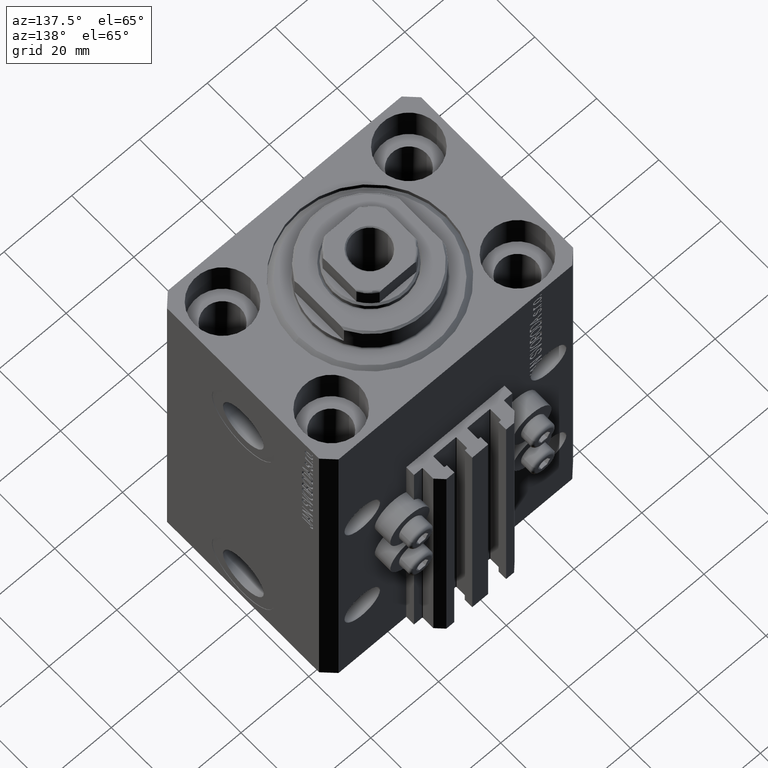
[diagram: clean part render]
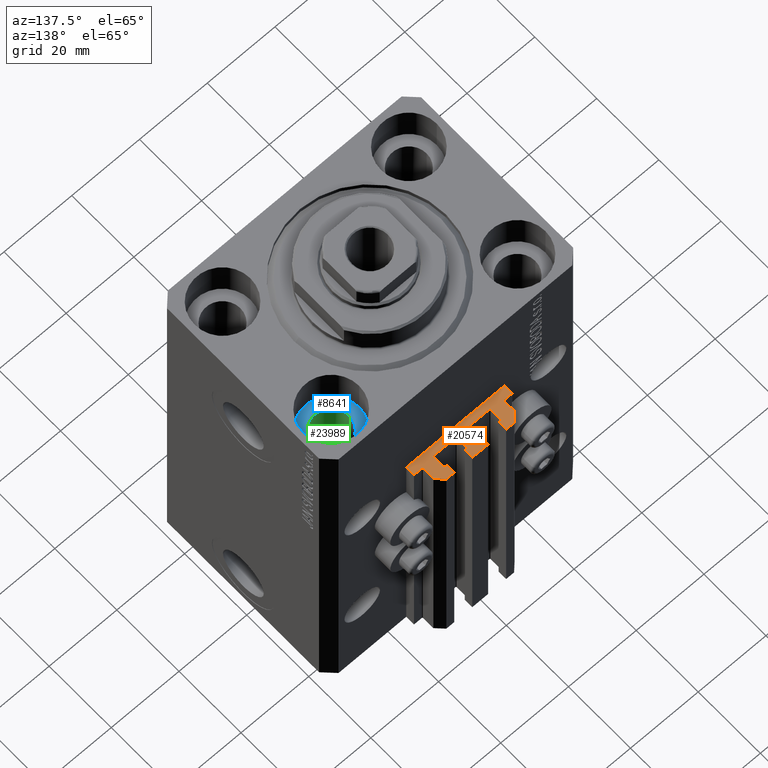
[diagram: same view with three faces highlighted in distinct colors, each labeled with its STEP entity id]
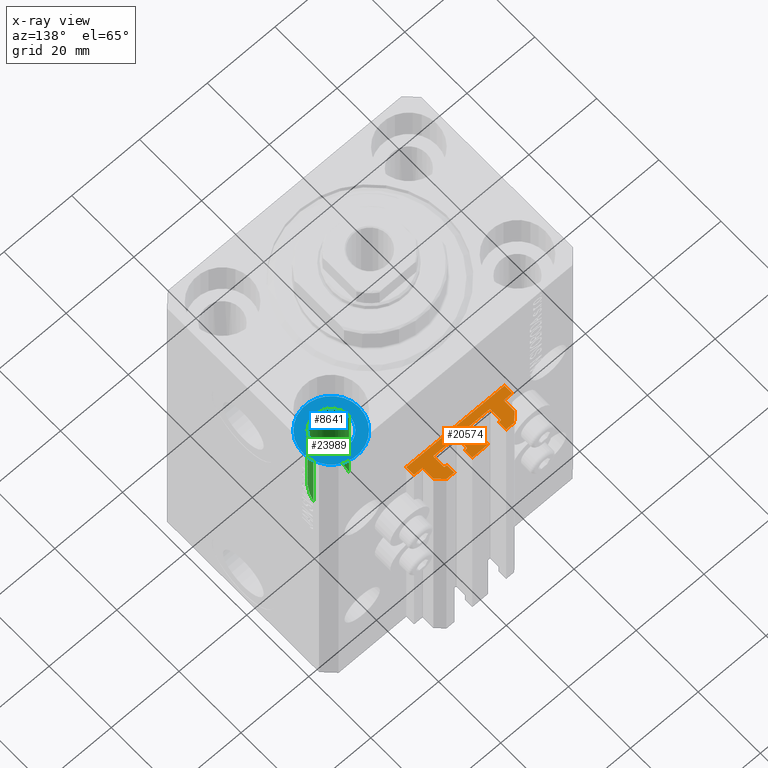
[diagram: x-ray of the same camera — body ghosted, the three highlighted faces saturated]
A machine part, auxiliary view with three faces highlighted in distinct colors.
The next image is the same camera in x-ray (body ghosted, the three faces saturated) — at least one of them is partly hidden behind the body in this view.
Their STEP definitions:

[orange] entity #20574 — the highlighted planar face has unit normal (0, 0, 1).
#384 = EDGE_CURVE ( 'NONE', #39765, #4893, #3202, .T. ) ;
#623 = CIRCLE ( 'NONE', #17601, 0.2000000000000016209 ) ;
#1006 = CARTESIAN_POINT ( 'NONE',  ( 2.349999999999999645, 33.10000000000000853, -33.00000000000000000 ) ) ;
#1104 = CARTESIAN_POINT ( 'NONE',  ( 14.49999999999999645, 30.00000000000002487, -33.00000000000000000 ) ) ;
#1213 = CIRCLE ( 'NONE', #1322, 0.2000000000000031197 ) ;
#1322 = AXIS2_PLACEMENT_3D ( 'NONE', #19679, #34488, #40277 ) ;
#1653 = VERTEX_POINT ( 'NONE', #29956 ) ;
#1675 = VECTOR ( 'NONE', #6223, 1000.000000000000000 ) ;
#1679 = ORIENTED_EDGE ( 'NONE', *, *, #39161, .T. ) ;
#2243 = CARTESIAN_POINT ( 'NONE',  ( -8.399999999999996803, 29.69999999999999929, -33.00000000000000000 ) ) ;
#2390 = DIRECTION ( 'NONE',  ( 1.000000000000000000, 0.000000000000000000, 0.000000000000000000 ) ) ;
#2444 = EDGE_CURVE ( 'NONE', #35758, #33109, #39775, .T. ) ;
#2461 = DIRECTION ( 'NONE',  ( -1.000000000000000000, 1.508455196501571429E-15, 0.000000000000000000 ) ) ;
#2564 = DIRECTION ( 'NONE',  ( 0.000000000000000000, 1.000000000000000000, 0.000000000000000000 ) ) ;
#2591 = VERTEX_POINT ( 'NONE', #1006 ) ;
#3034 = CARTESIAN_POINT ( 'NONE',  ( 1.600000000000000533, 32.90000000000001279, -33.00000000000000000 ) ) ;
#3169 = VECTOR ( 'NONE', #31192, 1000.000000000000000 ) ;
#3202 = LINE ( 'NONE', #6809, #26036 ) ;
#3242 = VERTEX_POINT ( 'NONE', #24083 ) ;
#3573 = CARTESIAN_POINT ( 'NONE',  ( 7.649999999999998579, 35.50000000000001421, -33.00000000000000000 ) ) ;
#3766 = VECTOR ( 'NONE', #9048, 1000.000000000000000 ) ;
#3899 = DIRECTION ( 'NONE',  ( 1.000000000000000000, 0.000000000000000000, 0.000000000000000000 ) ) ;
#3930 = LINE ( 'NONE', #18898, #43066 ) ;
#4165 = DIRECTION ( 'NONE',  ( -1.000000000000000000, 0.000000000000000000, 0.000000000000000000 ) ) ;
#4171 = VERTEX_POINT ( 'NONE', #12243 ) ;
#4242 = VERTEX_POINT ( 'NONE', #5461 ) ;
#4386 = DIRECTION ( 'NONE',  ( 1.807003620809174632E-16, -1.000000000000000000, 0.000000000000000000 ) ) ;
#4860 = LINE ( 'NONE', #30543, #35535 ) ;
#4893 = VERTEX_POINT ( 'NONE', #33258 ) ;
#4903 = CARTESIAN_POINT ( 'NONE',  ( -2.350000000000003197, 33.10000000000000853, -33.00000000000000000 ) ) ;
#5025 = DIRECTION ( 'NONE',  ( 0.000000000000000000, 0.000000000000000000, 1.000000000000000000 ) ) ;
#5092 = CARTESIAN_POINT ( 'NONE',  ( 12.20000000000000107, 30.20000000000002061, -33.00000000000000000 ) ) ;
#5115 = CARTESIAN_POINT ( 'NONE',  ( 12.20000000000000107, 30.20000000000002061, -33.00000000000000000 ) ) ;
#5436 = EDGE_CURVE ( 'NONE', #13499, #35021, #10138, .T. ) ;
#5461 = CARTESIAN_POINT ( 'NONE',  ( -1.800000000000000933, 29.50000000000000355, -33.00000000000000000 ) ) ;
#5469 = EDGE_CURVE ( 'NONE', #4893, #12963, #21752, .T. ) ;
#5539 = CARTESIAN_POINT ( 'NONE',  ( -1.600000000000000533, 32.90000000000001279, -33.00000000000000000 ) ) ;
#5690 = LINE ( 'NONE', #39611, #6718 ) ;
#5773 = VERTEX_POINT ( 'NONE', #20963 ) ;
#5776 = CIRCLE ( 'NONE', #31347, 0.2000000000000033418 ) ;
#5810 = LINE ( 'NONE', #20562, #28611 ) ;
#5890 = CARTESIAN_POINT ( 'NONE',  ( -10.00000000000000000, 35.50000000000000000, -33.00000000000000000 ) ) ;
#6081 = LINE ( 'NONE', #1104, #3766 ) ;
#6125 = EDGE_CURVE ( 'NONE', #12785, #30532, #4860, .T. ) ;
#6223 = DIRECTION ( 'NONE',  ( 1.000000000000000000, -1.261617073437673828E-14, 0.000000000000000000 ) ) ;
#6324 = CARTESIAN_POINT ( 'NONE',  ( 14.49999999999999645, 27.50000000000000355, -33.00000000000000000 ) ) ;
#6382 = VECTOR ( 'NONE', #33386, 1000.000000000000000 ) ;
#6412 = DIRECTION ( 'NONE',  ( -1.084202172485505223E-15, 1.000000000000000000, 0.000000000000000000 ) ) ;
#6454 = DIRECTION ( 'NONE',  ( 0.000000000000000000, -1.000000000000000000, 0.000000000000000000 ) ) ;
#6547 = VERTEX_POINT ( 'NONE', #33825 ) ;
#6718 = VECTOR ( 'NONE', #6412, 1000.000000000000000 ) ;
#6809 = CARTESIAN_POINT ( 'NONE',  ( -14.50000000000000000, 29.99999999999999289, -33.00000000000000000 ) ) ;
#6968 = ORIENTED_EDGE ( 'NONE', *, *, #19816, .F. ) ;
#7039 = CARTESIAN_POINT ( 'NONE',  ( 8.199999999999999289, 29.70000000000000284, -33.00000000000000000 ) ) ;
#7048 = ORIENTED_EDGE ( 'NONE', *, *, #16628, .T. ) ;
#7365 = VERTEX_POINT ( 'NONE', #9856 ) ;
#7395 = VECTOR ( 'NONE', #2461, 1000.000000000000000 ) ;
#7646 = AXIS2_PLACEMENT_3D ( 'NONE', #35002, #16559, #14377 ) ;
#7659 = CARTESIAN_POINT ( 'NONE',  ( 1.599999999999999645, 29.69999999999999929, -33.00000000000000000 ) ) ;
#7725 = ORIENTED_EDGE ( 'NONE', *, *, #8616, .F. ) ;
#8275 = EDGE_CURVE ( 'NONE', #40523, #32992, #24364, .T. ) ;
#8332 = VERTEX_POINT ( 'NONE', #10806 ) ;
#8338 = CARTESIAN_POINT ( 'NONE',  ( 1.800000000000000933, 29.69999999999999929, -33.00000000000000000 ) ) ;
#8616 = EDGE_CURVE ( 'NONE', #26623, #7365, #19250, .T. ) ;
#9048 = DIRECTION ( 'NONE',  ( -1.000000000000000000, 0.000000000000000000, 0.000000000000000000 ) ) ;
#9387 = CARTESIAN_POINT ( 'NONE',  ( -8.199999999999997513, 32.89999999999999147, -33.00000000000000000 ) ) ;
#9595 = CARTESIAN_POINT ( 'NONE',  ( 7.649999999999998579, 35.50000000000001421, -33.00000000000000000 ) ) ;
#9856 = CARTESIAN_POINT ( 'NONE',  ( -8.199999999999997513, 29.50000000000000355, -33.00000000000000000 ) ) ;
#9974 = CARTESIAN_POINT ( 'NONE',  ( -7.650000000000000355, 33.09999999999999432, -33.00000000000000000 ) ) ;
#10138 = LINE ( 'NONE', #47216, #40905 ) ;
#10673 = DIRECTION ( 'NONE',  ( 0.000000000000000000, 0.000000000000000000, 1.000000000000000000 ) ) ;
#10806 = CARTESIAN_POINT ( 'NONE',  ( -8.199999999999997513, 33.09999999999998721, -33.00000000000000000 ) ) ;
#10914 = DIRECTION ( 'NONE',  ( 0.000000000000000000, 1.000000000000000000, 0.000000000000000000 ) ) ;
#11194 = EDGE_CURVE ( 'NONE', #31587, #2591, #5810, .T. ) ;
#11304 = CARTESIAN_POINT ( 'NONE',  ( 12.00000000000000000, 33.50000000000001421, -33.00000000000000000 ) ) ;
#11356 = ORIENTED_EDGE ( 'NONE', *, *, #18056, .T. ) ;
#11413 = VECTOR ( 'NONE', #22269, 1000.000000000000000 ) ;
#11668 = ORIENTED_EDGE ( 'NONE', *, *, #40976, .T. ) ;
#12046 = CARTESIAN_POINT ( 'NONE',  ( 7.649999999999998579, 33.10000000000001563, -33.00000000000000000 ) ) ;
#12243 = CARTESIAN_POINT ( 'NONE',  ( 8.399999999999998579, 32.90000000000001990, -33.00000000000000000 ) ) ;
#12255 = VERTEX_POINT ( 'NONE', #26857 ) ;
#12785 = VERTEX_POINT ( 'NONE', #43731 ) ;
#12794 = ORIENTED_EDGE ( 'NONE', *, *, #2444, .T. ) ;
#12963 = VERTEX_POINT ( 'NONE', #31522 ) ;
#13499 = VERTEX_POINT ( 'NONE', #43220 ) ;
#13725 = VECTOR ( 'NONE', #46103, 1000.000000000000227 ) ;
#13821 = ORIENTED_EDGE ( 'NONE', *, *, #34254, .F. ) ;
#14087 = CARTESIAN_POINT ( 'NONE',  ( 9.999999999999998224, 35.50000000000001421, -33.00000000000000000 ) ) ;
#14139 = CARTESIAN_POINT ( 'NONE',  ( -12.20000000000000107, 30.19999999999999218, -33.00000000000000000 ) ) ;
#14323 = EDGE_LOOP ( 'NONE', ( #37530, #20453, #26717, #11668, #40945, #18524, #11356, #12794, #22204, #41343, #39416, #15252, #31410, #30537, #20347, #23515, #37192, #23215, #16352, #6968, #40659, #43551, #13821, #1679, #41798, #7048, #7725, #44740, #32530, #38284, #16983, #47882, #39864, #30749, #38088, #47551 ) ) ;
#14377 = DIRECTION ( 'NONE',  ( 1.000000000000000000, 0.000000000000000000, 0.000000000000000000 ) ) ;
#14383 = VERTEX_POINT ( 'NONE', #31528 ) ;
#15120 = EDGE_CURVE ( 'NONE', #22452, #5773, #25962, .T. ) ;
#15252 = ORIENTED_EDGE ( 'NONE', *, *, #44467, .T. ) ;
#15301 = DIRECTION ( 'NONE',  ( -5.421010862427496532E-16, -1.000000000000000000, 0.000000000000000000 ) ) ;
#15452 = EDGE_CURVE ( 'NONE', #40523, #12255, #33516, .T. ) ;
#15498 = CARTESIAN_POINT ( 'NONE',  ( -8.199999999999997513, 33.09999999999998721, -33.00000000000000000 ) ) ;
#16018 = FACE_OUTER_BOUND ( 'NONE', #14323, .T. ) ;
#16280 = DIRECTION ( 'NONE',  ( 0.000000000000000000, 1.000000000000000000, 0.000000000000000000 ) ) ;
#16352 = ORIENTED_EDGE ( 'NONE', *, *, #17921, .T. ) ;
#16559 = DIRECTION ( 'NONE',  ( 0.000000000000000000, 0.000000000000000000, 1.000000000000000000 ) ) ;
#16628 = EDGE_CURVE ( 'NONE', #4242, #7365, #23895, .T. ) ;
#16646 = DIRECTION ( 'NONE',  ( 0.000000000000000000, 0.000000000000000000, 1.000000000000000000 ) ) ;
#16662 = CIRCLE ( 'NONE', #17430, 0.2000000000000005107 ) ;
#16841 = EDGE_CURVE ( 'NONE', #28857, #6547, #41500, .T. ) ;
#16944 = DIRECTION ( 'NONE',  ( 1.000000000000000000, -1.261617073437681085E-14, 0.000000000000000000 ) ) ;
#16962 = DIRECTION ( 'NONE',  ( 0.000000000000000000, 0.000000000000000000, 1.000000000000000000 ) ) ;
#16983 = ORIENTED_EDGE ( 'NONE', *, *, #16841, .T. ) ;
#17128 = CARTESIAN_POINT ( 'NONE',  ( 8.200000000000001066, 32.90000000000001990, -33.00000000000000000 ) ) ;
#17430 = AXIS2_PLACEMENT_3D ( 'NONE', #14139, #35722, #36205 ) ;
#17505 = EDGE_CURVE ( 'NONE', #28517, #14383, #39423, .T. ) ;
#17601 = AXIS2_PLACEMENT_3D ( 'NONE', #8338, #41542, #23102 ) ;
#17921 = EDGE_CURVE ( 'NONE', #2591, #1653, #31146, .T. ) ;
#18056 = EDGE_CURVE ( 'NONE', #35021, #35758, #35978, .T. ) ;
#18440 = CARTESIAN_POINT ( 'NONE',  ( -2.350000000000003642, 35.50000000000001421, -33.00000000000000000 ) ) ;
#18463 = EDGE_CURVE ( 'NONE', #8332, #21045, #29535, .T. ) ;
#18524 = ORIENTED_EDGE ( 'NONE', *, *, #5436, .T. ) ;
#18557 = CARTESIAN_POINT ( 'NONE',  ( 1.800000000000000933, 29.50000000000000000, -33.00000000000000000 ) ) ;
#18898 = CARTESIAN_POINT ( 'NONE',  ( -7.650000000000000355, 35.50000000000000000, -33.00000000000000000 ) ) ;
#19250 = CIRCLE ( 'NONE', #7646, 0.1999999999999987899 ) ;
#19679 = CARTESIAN_POINT ( 'NONE',  ( -1.800000000000000933, 32.90000000000001279, -33.00000000000000000 ) ) ;
#19816 = EDGE_CURVE ( 'NONE', #12785, #1653, #32538, .T. ) ;
#19987 = VECTOR ( 'NONE', #32921, 1000.000000000000000 ) ;
#20097 = VECTOR ( 'NONE', #6454, 1000.000000000000000 ) ;
#20141 = CARTESIAN_POINT ( 'NONE',  ( -12.20000000000000107, 29.99999999999998934, -33.00000000000000000 ) ) ;
#20347 = ORIENTED_EDGE ( 'NONE', *, *, #39532, .F. ) ;
#20453 = ORIENTED_EDGE ( 'NONE', *, *, #5469, .T. ) ;
#20562 = CARTESIAN_POINT ( 'NONE',  ( 1.800000000000000933, 33.10000000000001563, -33.00000000000000000 ) ) ;
#20574 = ADVANCED_FACE ( 'NONE', ( #16018 ), #45581, .T. ) ;
#20963 = CARTESIAN_POINT ( 'NONE',  ( -12.00000000000000000, 30.19999999999999218, -33.00000000000000000 ) ) ;
#21045 = VERTEX_POINT ( 'NONE', #43559 ) ;
#21121 = EDGE_CURVE ( 'NONE', #33828, #47189, #22440, .T. ) ;
#21752 = LINE ( 'NONE', #36567, #19987 ) ;
#21791 = LINE ( 'NONE', #44092, #22849 ) ;
#21855 = CARTESIAN_POINT ( 'NONE',  ( -12.00000000000000000, 33.49999999999998579, -33.00000000000000000 ) ) ;
#22204 = ORIENTED_EDGE ( 'NONE', *, *, #42364, .T. ) ;
#22269 = DIRECTION ( 'NONE',  ( 1.000000000000000000, 1.261617073437685503E-14, 0.000000000000000000 ) ) ;
#22440 = LINE ( 'NONE', #29504, #6382 ) ;
#22452 = VERTEX_POINT ( 'NONE', #42977 ) ;
#22849 = VECTOR ( 'NONE', #24945, 1000.000000000000000 ) ;
#23102 = DIRECTION ( 'NONE',  ( 1.000000000000000000, 0.000000000000000000, 0.000000000000000000 ) ) ;
#23215 = ORIENTED_EDGE ( 'NONE', *, *, #11194, .T. ) ;
#23271 = CARTESIAN_POINT ( 'NONE',  ( 8.400000000000000355, 32.90000000000001990, -33.00000000000000000 ) ) ;
#23515 = ORIENTED_EDGE ( 'NONE', *, *, #21121, .T. ) ;
#23895 = LINE ( 'NONE', #35961, #3169 ) ;
#24083 = CARTESIAN_POINT ( 'NONE',  ( 12.20000000000000107, 30.00000000000002487, -33.00000000000000000 ) ) ;
#24275 = AXIS2_PLACEMENT_3D ( 'NONE', #45489, #5025, #27069 ) ;
#24364 = LINE ( 'NONE', #31424, #42449 ) ;
#24945 = DIRECTION ( 'NONE',  ( 1.000000000000000000, 1.261617073437673039E-14, 0.000000000000000000 ) ) ;
#25203 = CARTESIAN_POINT ( 'NONE',  ( -1.600000000000000755, 29.69999999999999929, -33.00000000000000000 ) ) ;
#25450 = VERTEX_POINT ( 'NONE', #26269 ) ;
#25612 = VECTOR ( 'NONE', #43710, 1000.000000000000114 ) ;
#25923 = EDGE_CURVE ( 'NONE', #12963, #25450, #47507, .T. ) ;
#25962 = LINE ( 'NONE', #21855, #46642 ) ;
#26036 = VECTOR ( 'NONE', #28373, 1000.000000000000000 ) ;
#26269 = CARTESIAN_POINT ( 'NONE',  ( 14.49999999999999645, 30.00000000000002487, -33.00000000000000000 ) ) ;
#26623 = VERTEX_POINT ( 'NONE', #2243 ) ;
#26717 = ORIENTED_EDGE ( 'NONE', *, *, #25923, .T. ) ;
#26857 = CARTESIAN_POINT ( 'NONE',  ( 8.400000000000000355, 29.70000000000000284, -33.00000000000000000 ) ) ;
#26858 = CARTESIAN_POINT ( 'NONE',  ( 9.999999999999998224, 35.50000000000001421, -33.00000000000000000 ) ) ;
#27069 = DIRECTION ( 'NONE',  ( 1.000000000000000000, 0.000000000000000000, 0.000000000000000000 ) ) ;
#27604 = DIRECTION ( 'NONE',  ( 0.000000000000000000, 0.000000000000000000, 1.000000000000000000 ) ) ;
#27861 = CARTESIAN_POINT ( 'NONE',  ( 1.800000000000000933, 32.90000000000001279, -33.00000000000000000 ) ) ;
#28015 = LINE ( 'NONE', #9595, #20097 ) ;
#28373 = DIRECTION ( 'NONE',  ( 0.000000000000000000, -1.000000000000000000, 0.000000000000000000 ) ) ;
#28503 = EDGE_CURVE ( 'NONE', #4242, #30679, #37485, .T. ) ;
#28517 = VERTEX_POINT ( 'NONE', #12046 ) ;
#28611 = VECTOR ( 'NONE', #16944, 1000.000000000000000 ) ;
#28857 = VERTEX_POINT ( 'NONE', #9974 ) ;
#29004 = CIRCLE ( 'NONE', #40590, 0.1999999999999987899 ) ;
#29057 = EDGE_CURVE ( 'NONE', #13499, #3242, #29004, .T. ) ;
#29240 = VECTOR ( 'NONE', #31464, 1000.000000000000000 ) ;
#29504 = CARTESIAN_POINT ( 'NONE',  ( 1.600000000000000533, 29.69999999999999929, -33.00000000000000000 ) ) ;
#29521 = DIRECTION ( 'NONE',  ( -5.256737805990334897E-16, 1.000000000000000000, 0.000000000000000000 ) ) ;
#29535 = CIRCLE ( 'NONE', #36499, 0.2000000000000005107 ) ;
#29624 = CARTESIAN_POINT ( 'NONE',  ( -14.50000000000000000, 29.99999999999999289, -33.00000000000000000 ) ) ;
#29634 = AXIS2_PLACEMENT_3D ( 'NONE', #7039, #10673, #3899 ) ;
#29956 = CARTESIAN_POINT ( 'NONE',  ( 2.349999999999999645, 35.50000000000001421, -33.00000000000000000 ) ) ;
#30112 = EDGE_CURVE ( 'NONE', #31587, #47189, #5776, .T. ) ;
#30147 = VERTEX_POINT ( 'NONE', #40695 ) ;
#30532 = VERTEX_POINT ( 'NONE', #4903 ) ;
#30537 = ORIENTED_EDGE ( 'NONE', *, *, #8275, .T. ) ;
#30543 = CARTESIAN_POINT ( 'NONE',  ( -2.350000000000003642, 35.50000000000001421, -33.00000000000000000 ) ) ;
#30679 = VERTEX_POINT ( 'NONE', #25203 ) ;
#30749 = ORIENTED_EDGE ( 'NONE', *, *, #15120, .T. ) ;
#31146 = LINE ( 'NONE', #42273, #41124 ) ;
#31192 = DIRECTION ( 'NONE',  ( -1.000000000000000000, 0.000000000000000000, 0.000000000000000000 ) ) ;
#31236 = EDGE_CURVE ( 'NONE', #46633, #5773, #16662, .T. ) ;
#31347 = AXIS2_PLACEMENT_3D ( 'NONE', #27861, #47247, #32481 ) ;
#31410 = ORIENTED_EDGE ( 'NONE', *, *, #15452, .F. ) ;
#31424 = CARTESIAN_POINT ( 'NONE',  ( 8.199999999999999289, 29.50000000000000711, -33.00000000000000000 ) ) ;
#31464 = DIRECTION ( 'NONE',  ( -6.776263578034378061E-17, -1.000000000000000000, 0.000000000000000000 ) ) ;
#31522 = CARTESIAN_POINT ( 'NONE',  ( 14.49999999999999645, 27.50000000000000355, -33.00000000000000000 ) ) ;
#31528 = CARTESIAN_POINT ( 'NONE',  ( 8.200000000000001066, 33.10000000000000853, -33.00000000000000000 ) ) ;
#31587 = VERTEX_POINT ( 'NONE', #44360 ) ;
#32481 = DIRECTION ( 'NONE',  ( 1.000000000000000000, 0.000000000000000000, 0.000000000000000000 ) ) ;
#32530 = ORIENTED_EDGE ( 'NONE', *, *, #18463, .F. ) ;
#32538 = LINE ( 'NONE', #18440, #46563 ) ;
#32825 = CARTESIAN_POINT ( 'NONE',  ( 12.00000000000000000, 33.50000000000001421, -33.00000000000000000 ) ) ;
#32921 = DIRECTION ( 'NONE',  ( 1.000000000000000000, 0.000000000000000000, 0.000000000000000000 ) ) ;
#32992 = VERTEX_POINT ( 'NONE', #18557 ) ;
#33109 = VERTEX_POINT ( 'NONE', #3573 ) ;
#33258 = CARTESIAN_POINT ( 'NONE',  ( -14.50000000000000000, 27.50000000000000355, -33.00000000000000000 ) ) ;
#33386 = DIRECTION ( 'NONE',  ( 0.000000000000000000, 1.000000000000000000, 0.000000000000000000 ) ) ;
#33516 = CIRCLE ( 'NONE', #29634, 0.1999999999999987899 ) ;
#33825 = CARTESIAN_POINT ( 'NONE',  ( -7.650000000000000355, 35.50000000000000000, -33.00000000000000000 ) ) ;
#33828 = VERTEX_POINT ( 'NONE', #7659 ) ;
#33923 = LINE ( 'NONE', #15498, #11413 ) ;
#34254 = EDGE_CURVE ( 'NONE', #30147, #46918, #1213, .T. ) ;
#34488 = DIRECTION ( 'NONE',  ( 0.000000000000000000, 0.000000000000000000, 1.000000000000000000 ) ) ;
#34808 = CARTESIAN_POINT ( 'NONE',  ( 8.199999999999999289, 29.50000000000000711, -33.00000000000000000 ) ) ;
#35002 = CARTESIAN_POINT ( 'NONE',  ( -8.199999999999997513, 29.69999999999999929, -33.00000000000000000 ) ) ;
#35021 = VERTEX_POINT ( 'NONE', #11304 ) ;
#35379 = VECTOR ( 'NONE', #15301, 1000.000000000000000 ) ;
#35535 = VECTOR ( 'NONE', #4386, 1000.000000000000000 ) ;
#35606 = EDGE_CURVE ( 'NONE', #30532, #46918, #21791, .T. ) ;
#35633 = EDGE_CURVE ( 'NONE', #46633, #39765, #47731, .T. ) ;
#35722 = DIRECTION ( 'NONE',  ( 0.000000000000000000, 0.000000000000000000, 1.000000000000000000 ) ) ;
#35758 = VERTEX_POINT ( 'NONE', #26858 ) ;
#35808 = DIRECTION ( 'NONE',  ( 0.000000000000000000, 0.000000000000000000, 1.000000000000000000 ) ) ;
#35948 = LINE ( 'NONE', #5890, #13725 ) ;
#35961 = CARTESIAN_POINT ( 'NONE',  ( -1.800000000000000933, 29.50000000000000355, -33.00000000000000000 ) ) ;
#35978 = LINE ( 'NONE', #32825, #25612 ) ;
#36170 = CIRCLE ( 'NONE', #43899, 0.1999999999999970690 ) ;
#36205 = DIRECTION ( 'NONE',  ( 1.000000000000000000, 0.000000000000000000, 0.000000000000000000 ) ) ;
#36499 = AXIS2_PLACEMENT_3D ( 'NONE', #9387, #35808, #2390 ) ;
#36567 = CARTESIAN_POINT ( 'NONE',  ( -14.50000000000000000, 27.50000000000000355, -33.00000000000000000 ) ) ;
#37192 = ORIENTED_EDGE ( 'NONE', *, *, #30112, .F. ) ;
#37362 = DIRECTION ( 'NONE',  ( 1.000000000000000000, 0.000000000000000000, 0.000000000000000000 ) ) ;
#37485 = CIRCLE ( 'NONE', #24275, 0.1999999999999994282 ) ;
#37530 = ORIENTED_EDGE ( 'NONE', *, *, #384, .T. ) ;
#37730 = EDGE_CURVE ( 'NONE', #26623, #21045, #5690, .T. ) ;
#37881 = EDGE_CURVE ( 'NONE', #6547, #43277, #3930, .T. ) ;
#38088 = ORIENTED_EDGE ( 'NONE', *, *, #31236, .F. ) ;
#38284 = ORIENTED_EDGE ( 'NONE', *, *, #39139, .T. ) ;
#38379 = EDGE_CURVE ( 'NONE', #4171, #14383, #36170, .T. ) ;
#38707 = CARTESIAN_POINT ( 'NONE',  ( 7.649999999999998579, 33.10000000000001563, -33.00000000000000000 ) ) ;
#39023 = DIRECTION ( 'NONE',  ( 1.000000000000000000, 0.000000000000000000, -0.000000000000000000 ) ) ;
#39118 = CARTESIAN_POINT ( 'NONE',  ( -10.00000000000000000, 35.50000000000000000, -33.00000000000000000 ) ) ;
#39139 = EDGE_CURVE ( 'NONE', #8332, #28857, #33923, .T. ) ;
#39161 = EDGE_CURVE ( 'NONE', #30147, #30679, #41902, .T. ) ;
#39416 = ORIENTED_EDGE ( 'NONE', *, *, #38379, .F. ) ;
#39423 = LINE ( 'NONE', #38707, #1675 ) ;
#39532 = EDGE_CURVE ( 'NONE', #33828, #32992, #623, .T. ) ;
#39611 = CARTESIAN_POINT ( 'NONE',  ( -8.399999999999996803, 29.69999999999999929, -33.00000000000000000 ) ) ;
#39645 = EDGE_CURVE ( 'NONE', #43277, #22452, #35948, .T. ) ;
#39747 = CARTESIAN_POINT ( 'NONE',  ( -12.20000000000000107, 29.99999999999998934, -33.00000000000000000 ) ) ;
#39765 = VERTEX_POINT ( 'NONE', #29624 ) ;
#39775 = LINE ( 'NONE', #14087, #47017 ) ;
#39864 = ORIENTED_EDGE ( 'NONE', *, *, #39645, .T. ) ;
#40277 = DIRECTION ( 'NONE',  ( 1.000000000000000000, 0.000000000000000000, 0.000000000000000000 ) ) ;
#40431 = AXIS2_PLACEMENT_3D ( 'NONE', #5115, #16962, #39023 ) ;
#40496 = DIRECTION ( 'NONE',  ( -1.000000000000000000, 0.000000000000000000, 0.000000000000000000 ) ) ;
#40523 = VERTEX_POINT ( 'NONE', #34808 ) ;
#40590 = AXIS2_PLACEMENT_3D ( 'NONE', #5092, #27604, #46259 ) ;
#40659 = ORIENTED_EDGE ( 'NONE', *, *, #6125, .T. ) ;
#40695 = CARTESIAN_POINT ( 'NONE',  ( -1.599999999999997868, 32.90000000000001279, -33.00000000000000000 ) ) ;
#40905 = VECTOR ( 'NONE', #29521, 1000.000000000000000 ) ;
#40945 = ORIENTED_EDGE ( 'NONE', *, *, #29057, .F. ) ;
#40976 = EDGE_CURVE ( 'NONE', #25450, #3242, #6081, .T. ) ;
#41015 = DIRECTION ( 'NONE',  ( 0.000000000000000000, -1.000000000000000000, 0.000000000000000000 ) ) ;
#41124 = VECTOR ( 'NONE', #2564, 1000.000000000000000 ) ;
#41343 = ORIENTED_EDGE ( 'NONE', *, *, #17505, .T. ) ;
#41500 = LINE ( 'NONE', #41744, #42596 ) ;
#41542 = DIRECTION ( 'NONE',  ( 0.000000000000000000, 0.000000000000000000, 1.000000000000000000 ) ) ;
#41712 = LINE ( 'NONE', #23271, #35379 ) ;
#41744 = CARTESIAN_POINT ( 'NONE',  ( -7.650000000000000355, 33.09999999999999432, -33.00000000000000000 ) ) ;
#41798 = ORIENTED_EDGE ( 'NONE', *, *, #28503, .F. ) ;
#41902 = LINE ( 'NONE', #5539, #29240 ) ;
#42273 = CARTESIAN_POINT ( 'NONE',  ( 2.349999999999999645, 33.10000000000000853, -33.00000000000000000 ) ) ;
#42364 = EDGE_CURVE ( 'NONE', #33109, #28517, #28015, .T. ) ;
#42449 = VECTOR ( 'NONE', #46183, 1000.000000000000000 ) ;
#42596 = VECTOR ( 'NONE', #16280, 1000.000000000000000 ) ;
#42977 = CARTESIAN_POINT ( 'NONE',  ( -12.00000000000000000, 33.49999999999998579, -33.00000000000000000 ) ) ;
#43066 = VECTOR ( 'NONE', #4165, 1000.000000000000000 ) ;
#43220 = CARTESIAN_POINT ( 'NONE',  ( 12.00000000000000178, 30.20000000000002061, -33.00000000000000000 ) ) ;
#43277 = VERTEX_POINT ( 'NONE', #39118 ) ;
#43551 = ORIENTED_EDGE ( 'NONE', *, *, #35606, .T. ) ;
#43559 = CARTESIAN_POINT ( 'NONE',  ( -8.400000000000000355, 32.89999999999999858, -33.00000000000000000 ) ) ;
#43562 = VECTOR ( 'NONE', #10914, 1000.000000000000000 ) ;
#43710 = DIRECTION ( 'NONE',  ( -0.7071067811865474617, 0.7071067811865474617, 0.000000000000000000 ) ) ;
#43731 = CARTESIAN_POINT ( 'NONE',  ( -2.350000000000003642, 35.50000000000001421, -33.00000000000000000 ) ) ;
#43899 = AXIS2_PLACEMENT_3D ( 'NONE', #17128, #16646, #47186 ) ;
#44092 = CARTESIAN_POINT ( 'NONE',  ( -2.350000000000003197, 33.10000000000000853, -33.00000000000000000 ) ) ;
#44360 = CARTESIAN_POINT ( 'NONE',  ( 1.800000000000000933, 33.10000000000001563, -33.00000000000000000 ) ) ;
#44467 = EDGE_CURVE ( 'NONE', #4171, #12255, #41712, .T. ) ;
#44740 = ORIENTED_EDGE ( 'NONE', *, *, #37730, .T. ) ;
#45489 = CARTESIAN_POINT ( 'NONE',  ( -1.800000000000000933, 29.69999999999999929, -33.00000000000000000 ) ) ;
#45581 = PLANE ( 'NONE',  #40431 ) ;
#46103 = DIRECTION ( 'NONE',  ( -0.7071067811865460184, -0.7071067811865490160, 0.000000000000000000 ) ) ;
#46183 = DIRECTION ( 'NONE',  ( -1.000000000000000000, -1.084202172485504828E-15, 0.000000000000000000 ) ) ;
#46259 = DIRECTION ( 'NONE',  ( 1.000000000000000000, 0.000000000000000000, 0.000000000000000000 ) ) ;
#46563 = VECTOR ( 'NONE', #37362, 1000.000000000000000 ) ;
#46633 = VERTEX_POINT ( 'NONE', #20141 ) ;
#46642 = VECTOR ( 'NONE', #41015, 1000.000000000000000 ) ;
#46918 = VERTEX_POINT ( 'NONE', #47476 ) ;
#47017 = VECTOR ( 'NONE', #40496, 1000.000000000000000 ) ;
#47186 = DIRECTION ( 'NONE',  ( 1.000000000000000000, 0.000000000000000000, 0.000000000000000000 ) ) ;
#47189 = VERTEX_POINT ( 'NONE', #3034 ) ;
#47216 = CARTESIAN_POINT ( 'NONE',  ( 12.00000000000000178, 30.20000000000002061, -33.00000000000000000 ) ) ;
#47247 = DIRECTION ( 'NONE',  ( 0.000000000000000000, 0.000000000000000000, 1.000000000000000000 ) ) ;
#47476 = CARTESIAN_POINT ( 'NONE',  ( -1.800000000000000933, 33.10000000000001563, -33.00000000000000000 ) ) ;
#47507 = LINE ( 'NONE', #6324, #43562 ) ;
#47551 = ORIENTED_EDGE ( 'NONE', *, *, #35633, .T. ) ;
#47731 = LINE ( 'NONE', #39747, #7395 ) ;
#47882 = ORIENTED_EDGE ( 'NONE', *, *, #37881, .T. ) ;

[blue] entity #8641 — the highlighted planar face has unit normal (0, 0, 1).
#309 = VERTEX_POINT ( 'NONE', #20132 ) ;
#1279 = AXIS2_PLACEMENT_3D ( 'NONE', #39687, #28537, #46697 ) ;
#3973 = DIRECTION ( 'NONE',  ( 0.000000000000000000, 0.000000000000000000, 1.000000000000000000 ) ) ;
#5302 = DIRECTION ( 'NONE',  ( 1.000000000000000000, 0.000000000000000000, 0.000000000000000000 ) ) ;
#6766 = ORIENTED_EDGE ( 'NONE', *, *, #35945, .F. ) ;
#7823 = DIRECTION ( 'NONE',  ( 0.000000000000000000, 0.000000000000000000, 1.000000000000000000 ) ) ;
#8641 = ADVANCED_FACE ( 'NONE', ( #21638, #36921 ), #18234, .T. ) ;
#12683 = CIRCLE ( 'NONE', #42857, 5.249999999999997335 ) ;
#14547 = DIRECTION ( 'NONE',  ( 1.000000000000000000, 0.000000000000000000, 0.000000000000000000 ) ) ;
#15448 = EDGE_CURVE ( 'NONE', #32607, #33023, #24179, .T. ) ;
#15861 = ORIENTED_EDGE ( 'NONE', *, *, #28602, .F. ) ;
#17500 = ORIENTED_EDGE ( 'NONE', *, *, #39272, .T. ) ;
#18234 = PLANE ( 'NONE',  #24651 ) ;
#18714 = DIRECTION ( 'NONE',  ( 1.000000000000000000, 0.000000000000000000, 0.000000000000000000 ) ) ;
#20057 = DIRECTION ( 'NONE',  ( 0.000000000000000000, 0.000000000000000000, 1.000000000000000000 ) ) ;
#20132 = CARTESIAN_POINT ( 'NONE',  ( 32.74999999999999289, 17.50000000000001066, -11.00000000000000000 ) ) ;
#21638 = FACE_BOUND ( 'NONE', #21766, .T. ) ;
#21766 = EDGE_LOOP ( 'NONE', ( #15861, #6766 ) ) ;
#22107 = CARTESIAN_POINT ( 'NONE',  ( 27.49999999999999645, 17.50000000000001066, -11.00000000000000000 ) ) ;
#24179 = CIRCLE ( 'NONE', #42019, 8.249999999999992895 ) ;
#24651 = AXIS2_PLACEMENT_3D ( 'NONE', #22107, #3973, #40789 ) ;
#26066 = CARTESIAN_POINT ( 'NONE',  ( 35.74999999999999289, 17.50000000000001066, -11.00000000000000000 ) ) ;
#28282 = EDGE_LOOP ( 'NONE', ( #17500, #43972 ) ) ;
#28537 = DIRECTION ( 'NONE',  ( 0.000000000000000000, 0.000000000000000000, 1.000000000000000000 ) ) ;
#28602 = EDGE_CURVE ( 'NONE', #309, #38719, #12683, .T. ) ;
#29332 = CARTESIAN_POINT ( 'NONE',  ( 27.49999999999999645, 17.50000000000001066, -11.00000000000000000 ) ) ;
#30554 = CARTESIAN_POINT ( 'NONE',  ( 19.25000000000000000, 17.50000000000001066, -11.00000000000000000 ) ) ;
#32363 = CARTESIAN_POINT ( 'NONE',  ( 22.25000000000000000, 17.50000000000001066, -11.00000000000000000 ) ) ;
#32607 = VERTEX_POINT ( 'NONE', #30554 ) ;
#33023 = VERTEX_POINT ( 'NONE', #26066 ) ;
#35945 = EDGE_CURVE ( 'NONE', #38719, #309, #37607, .T. ) ;
#36619 = DIRECTION ( 'NONE',  ( 0.000000000000000000, 0.000000000000000000, 1.000000000000000000 ) ) ;
#36921 = FACE_OUTER_BOUND ( 'NONE', #28282, .T. ) ;
#37607 = CIRCLE ( 'NONE', #1279, 5.249999999999997335 ) ;
#37744 = CIRCLE ( 'NONE', #38503, 8.249999999999992895 ) ;
#38503 = AXIS2_PLACEMENT_3D ( 'NONE', #42131, #20057, #5302 ) ;
#38719 = VERTEX_POINT ( 'NONE', #32363 ) ;
#39272 = EDGE_CURVE ( 'NONE', #33023, #32607, #37744, .T. ) ;
#39687 = CARTESIAN_POINT ( 'NONE',  ( 27.49999999999999645, 17.50000000000001066, -11.00000000000000000 ) ) ;
#40789 = DIRECTION ( 'NONE',  ( 1.000000000000000000, 0.000000000000000000, -0.000000000000000000 ) ) ;
#41504 = CARTESIAN_POINT ( 'NONE',  ( 27.49999999999999645, 17.50000000000001066, -11.00000000000000000 ) ) ;
#42019 = AXIS2_PLACEMENT_3D ( 'NONE', #29332, #36619, #14547 ) ;
#42131 = CARTESIAN_POINT ( 'NONE',  ( 27.49999999999999645, 17.50000000000001066, -11.00000000000000000 ) ) ;
#42857 = AXIS2_PLACEMENT_3D ( 'NONE', #41504, #7823, #18714 ) ;
#43972 = ORIENTED_EDGE ( 'NONE', *, *, #15448, .T. ) ;
#46697 = DIRECTION ( 'NONE',  ( 1.000000000000000000, 0.000000000000000000, 0.000000000000000000 ) ) ;

[green] entity #23989 — the highlighted cylindrical surface (edge-blend (fillet) strip) has radius 5.25 mm, axis along (0, 0, 1).
#309 = VERTEX_POINT ( 'NONE', #20132 ) ;
#1279 = AXIS2_PLACEMENT_3D ( 'NONE', #39687, #28537, #46697 ) ;
#2169 = CARTESIAN_POINT ( 'NONE',  ( 32.74999999999999289, 17.50000000000001421, -39.99999999999999289 ) ) ;
#4619 = EDGE_LOOP ( 'NONE', ( #13763, #47782, #14183, #34587 ) ) ;
#4878 = CYLINDRICAL_SURFACE ( 'NONE', #42729, 5.249999999999997335 ) ;
#5583 = CARTESIAN_POINT ( 'NONE',  ( 27.49999999999999645, 17.50000000000001066, -110.0000000000000000 ) ) ;
#6498 = CARTESIAN_POINT ( 'NONE',  ( 22.25000000000000711, 17.50000000000001421, -39.99999999999999289 ) ) ;
#12835 = FACE_OUTER_BOUND ( 'NONE', #4619, .T. ) ;
#12853 = CARTESIAN_POINT ( 'NONE',  ( 32.74999999999999289, 17.50000000000001421, -39.99999999999999289 ) ) ;
#13763 = ORIENTED_EDGE ( 'NONE', *, *, #44825, .T. ) ;
#14183 = ORIENTED_EDGE ( 'NONE', *, *, #35945, .T. ) ;
#15311 = VECTOR ( 'NONE', #44638, 1000.000000000000000 ) ;
#16006 = DIRECTION ( 'NONE',  ( 1.000000000000000000, 0.000000000000000000, 0.000000000000000000 ) ) ;
#19423 = LINE ( 'NONE', #34464, #15311 ) ;
#20132 = CARTESIAN_POINT ( 'NONE',  ( 32.74999999999999289, 17.50000000000001066, -11.00000000000000000 ) ) ;
#22043 = CARTESIAN_POINT ( 'NONE',  ( 22.25000000000000711, 17.50000000000001421, -39.99999999999999289 ) ) ;
#23020 = DIRECTION ( 'NONE',  ( -0.000000000000000000, -0.000000000000000000, 1.000000000000000000 ) ) ;
#23989 = ADVANCED_FACE ( 'NONE', ( #12835 ), #4878, .F. ) ;
#25448 = CARTESIAN_POINT ( 'NONE',  ( 32.74999999999999289, 17.50000000000001066, -110.0000000000000000 ) ) ;
#26677 = VERTEX_POINT ( 'NONE', #22043 ) ;
#26865 =( BOUNDED_CURVE ( )  B_SPLINE_CURVE ( 3, ( #2169, #42844, #39216, #6498 ),
 .UNSPECIFIED., .F., .F. ) 
 B_SPLINE_CURVE_WITH_KNOTS ( ( 4, 4 ),
 ( 4.712388980384689674, 7.853981633974482790 ),
 .UNSPECIFIED. ) 
 CURVE ( )  GEOMETRIC_REPRESENTATION_ITEM ( )  RATIONAL_B_SPLINE_CURVE ( ( 1.000000000000000000, 0.3333333333333333703, 0.3333333333333333703, 1.000000000000000000 ) ) 
 REPRESENTATION_ITEM ( '' )  );
#28537 = DIRECTION ( 'NONE',  ( 0.000000000000000000, 0.000000000000000000, 1.000000000000000000 ) ) ;
#30830 = EDGE_CURVE ( 'NONE', #39975, #309, #43872, .T. ) ;
#32363 = CARTESIAN_POINT ( 'NONE',  ( 22.25000000000000000, 17.50000000000001066, -11.00000000000000000 ) ) ;
#34464 = CARTESIAN_POINT ( 'NONE',  ( 22.25000000000000000, 17.50000000000001066, -110.0000000000000000 ) ) ;
#34587 = ORIENTED_EDGE ( 'NONE', *, *, #30830, .F. ) ;
#35945 = EDGE_CURVE ( 'NONE', #38719, #309, #37607, .T. ) ;
#37547 = VECTOR ( 'NONE', #47752, 1000.000000000000000 ) ;
#37607 = CIRCLE ( 'NONE', #1279, 5.249999999999997335 ) ;
#38719 = VERTEX_POINT ( 'NONE', #32363 ) ;
#39216 = CARTESIAN_POINT ( 'NONE',  ( 22.25000000000001066, 7.000000000000031974, -29.50000000000001066 ) ) ;
#39687 = CARTESIAN_POINT ( 'NONE',  ( 27.49999999999999645, 17.50000000000001066, -11.00000000000000000 ) ) ;
#39975 = VERTEX_POINT ( 'NONE', #12853 ) ;
#42729 = AXIS2_PLACEMENT_3D ( 'NONE', #5583, #23020, #16006 ) ;
#42844 = CARTESIAN_POINT ( 'NONE',  ( 32.74999999999999289, 7.000000000000031974, -29.50000000000001066 ) ) ;
#43872 = LINE ( 'NONE', #25448, #37547 ) ;
#44638 = DIRECTION ( 'NONE',  ( -0.000000000000000000, -0.000000000000000000, 1.000000000000000000 ) ) ;
#44825 = EDGE_CURVE ( 'NONE', #39975, #26677, #26865, .T. ) ;
#45602 = EDGE_CURVE ( 'NONE', #26677, #38719, #19423, .T. ) ;
#46697 = DIRECTION ( 'NONE',  ( 1.000000000000000000, 0.000000000000000000, 0.000000000000000000 ) ) ;
#47752 = DIRECTION ( 'NONE',  ( -0.000000000000000000, -0.000000000000000000, 1.000000000000000000 ) ) ;
#47782 = ORIENTED_EDGE ( 'NONE', *, *, #45602, .T. ) ;